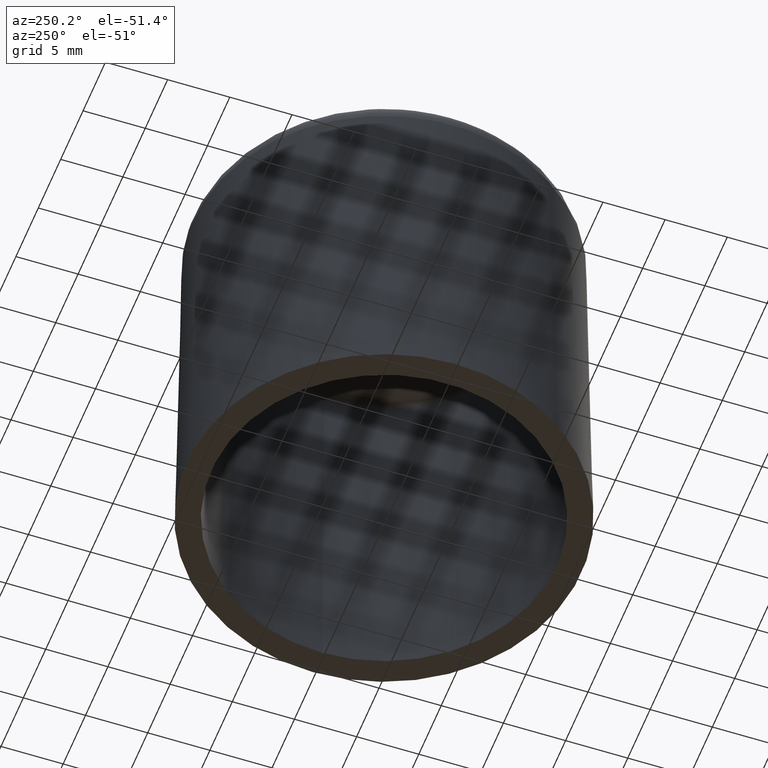
[diagram: clean part render]
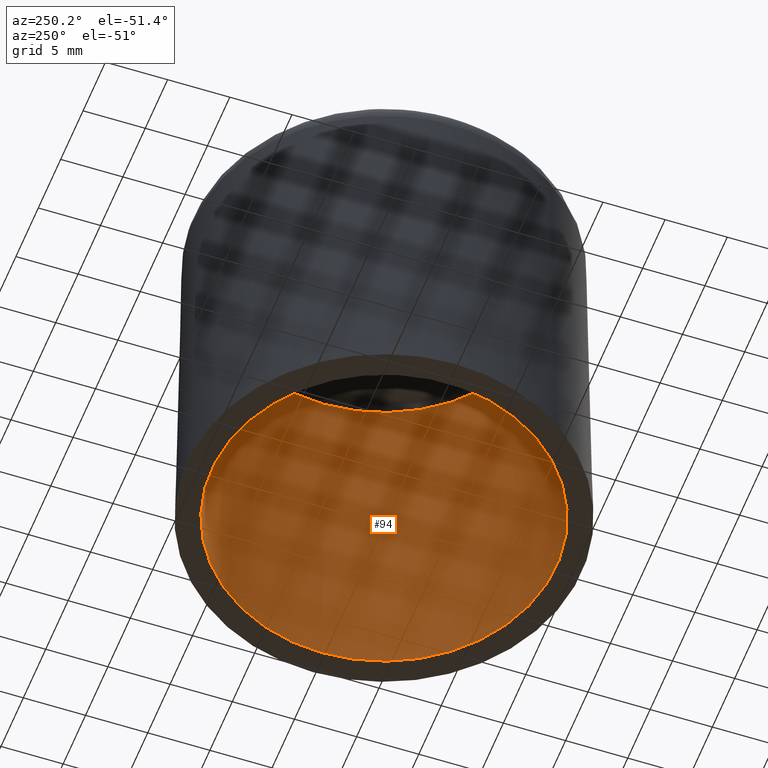
[diagram: same view with one face highlighted and labeled with its STEP entity id]
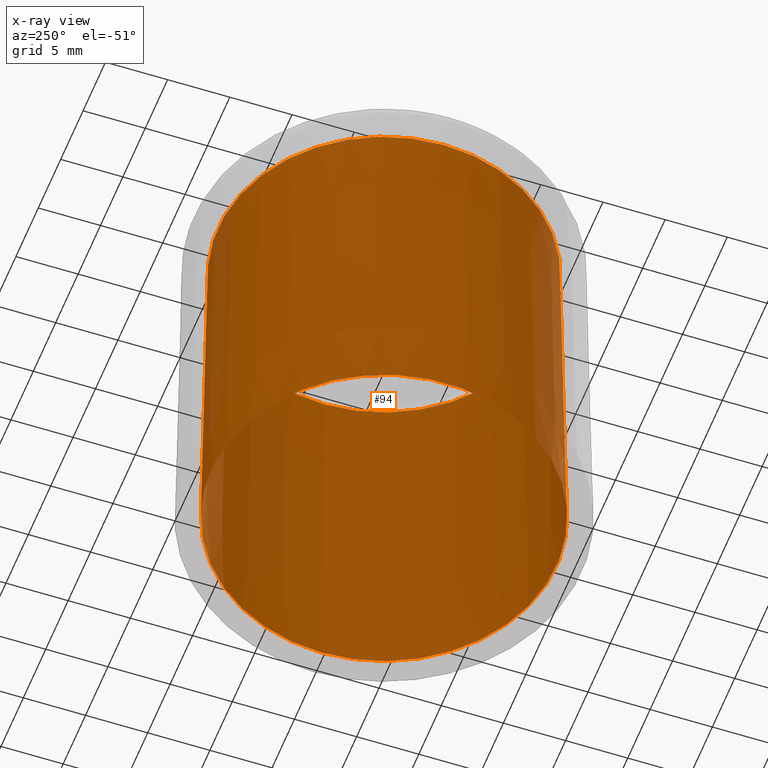
[diagram: x-ray of the same camera — body ghosted, the highlighted face saturated]
A machine part, auxiliary view. The second image highlights one B-rep face of the part: STEP entity #94.
The next image is the same camera in x-ray: the body ghosted, the highlighted face saturated — about 5% of this face is hidden behind the body in this view.
In plain terms, the highlighted conical surface has half-angle 1 deg.
Its self-contained STEP definition (entity closure, byte-faithful):
#94 = ADVANCED_FACE( '', ( #191, #192 ), #193, .F. );
#191 = FACE_OUTER_BOUND( '', #338, .T. );
#192 = FACE_BOUND( '', #339, .T. );
#193 = CONICAL_SURFACE( '', #340, 13.3467492420971, 0.0174532925199434 );
#338 = EDGE_LOOP( '', ( #644 ) );
#339 = EDGE_LOOP( '', ( #645 ) );
#340 = AXIS2_PLACEMENT_3D( '', #646, #647, #648 );
#644 = ORIENTED_EDGE( '', *, *, #1038, .F. );
#645 = ORIENTED_EDGE( '', *, *, #1074, .T. );
#646 = CARTESIAN_POINT( '', ( -1.80682868008332E-015, 0.000000000000000, 29.5087262032186 ) );
#647 = DIRECTION( '', ( 6.12303176911189E-017, 0.000000000000000, -1.00000000000000 ) );
#648 = DIRECTION( '', ( -1.00000000000000, 0.000000000000000, -6.12303176911189E-017 ) );
#1038 = EDGE_CURVE( '', #1237, #1237, #1238, .T. );
#1074 = EDGE_CURVE( '', #1295, #1295, #1296, .T. );
#1237 = VERTEX_POINT( '', #1612 );
#1238 = CIRCLE( '', #1613, 13.8618259739233 );
#1295 = VERTEX_POINT( '', #1752 );
#1296 = CIRCLE( '', #1753, 13.3467492420971 );
#1612 = CARTESIAN_POINT( '', ( 13.8618259739233, 0.000000000000000, -2.69068116074666E-014 ) );
#1613 = AXIS2_PLACEMENT_3D( '', #1972, #1973, #1974 );
#1752 = CARTESIAN_POINT( '', ( 13.3467492420971, 0.000000000000000, 29.5087262032186 ) );
#1753 = AXIS2_PLACEMENT_3D( '', #2000, #2001, #2002 );
#1972 = CARTESIAN_POINT( '', ( 1.69948271264483E-030, 0.000000000000000, -2.77555756156289E-014 ) );
#1973 = DIRECTION( '', ( -6.12303176911189E-017, 0.000000000000000, 1.00000000000000 ) );
#1974 = DIRECTION( '', ( 1.00000000000000, 0.000000000000000, 6.12303176911189E-017 ) );
#2000 = CARTESIAN_POINT( '', ( -1.80682868008332E-015, 0.000000000000000, 29.5087262032186 ) );
#2001 = DIRECTION( '', ( -6.12303176911189E-017, 0.000000000000000, 1.00000000000000 ) );
#2002 = DIRECTION( '', ( 1.00000000000000, 0.000000000000000, 6.12303176911189E-017 ) );